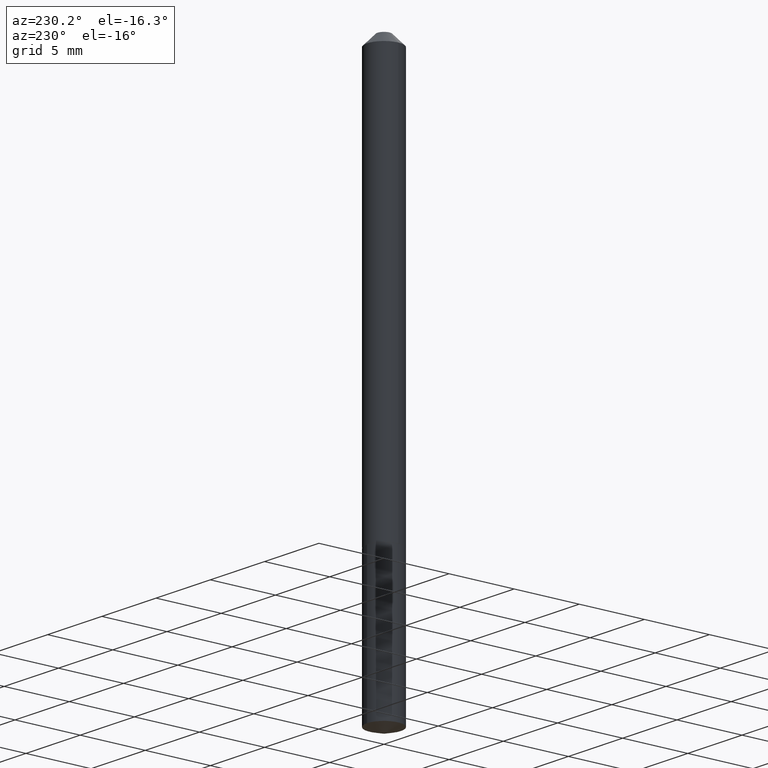
[diagram: clean part render]
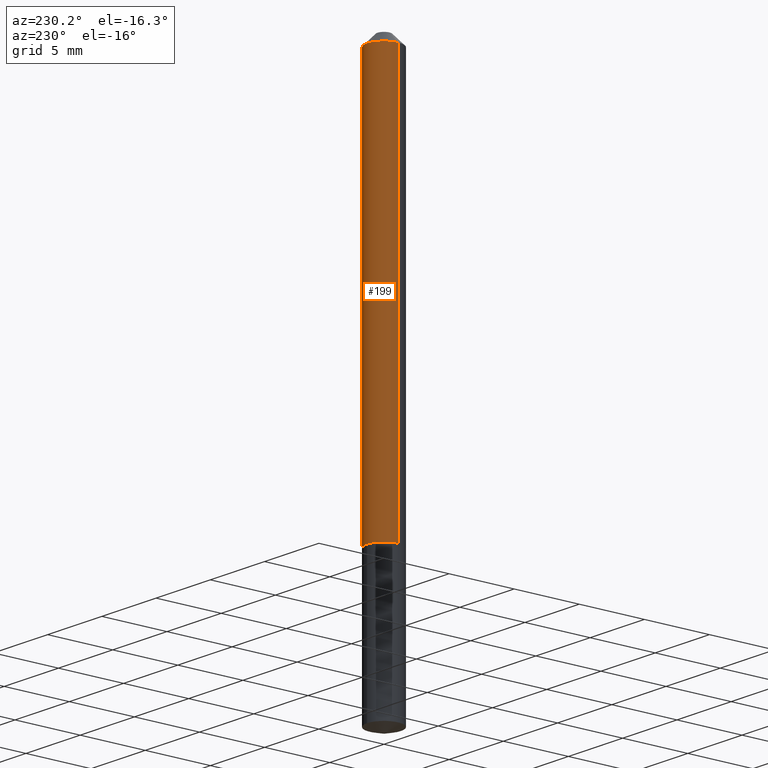
[diagram: same view with one face highlighted and labeled with its STEP entity id]
A machine part, auxiliary view. The second image highlights one B-rep face of the part: STEP entity #199.
In plain terms, the highlighted cylindrical surface (edge-blend (fillet) strip) has radius 1.3005 mm, axis along (-0, 0, 1).
Its self-contained STEP definition (entity closure, byte-faithful):
#14 = AXIS2_PLACEMENT_3D ( 'NONE', #375, #195, #16 ) ;
#16 = DIRECTION ( 'NONE',  ( 1.000000000000000000, -6.982962677686261977E-15, 0.000000000000000000 ) ) ;
#26 = FACE_OUTER_BOUND ( 'NONE', #43, .T. ) ;
#30 = EDGE_CURVE ( 'NONE', #340, #388, #218, .T. ) ;
#32 = VERTEX_POINT ( 'NONE', #275 ) ;
#43 = EDGE_LOOP ( 'NONE', ( #252, #182, #235, #96 ) ) ;
#46 = AXIS2_PLACEMENT_3D ( 'NONE', #265, #358, #114 ) ;
#56 = CARTESIAN_POINT ( 'NONE',  ( 0.05120000000000016205, -4.699533882082873778E-15, -1.243600000000000039 ) ) ;
#89 = DIRECTION ( 'NONE',  ( 1.000000000000000000, -6.982962677686266711E-15, 4.876176775795936353E-29 ) ) ;
#90 = DIRECTION ( 'NONE',  ( -2.445468806185136597E-29, 3.491481338843145583E-15, 1.000000000000000000 ) ) ;
#96 = ORIENTED_EDGE ( 'NONE', *, *, #256, .F. ) ;
#114 = DIRECTION ( 'NONE',  ( 1.000000000000000000, -6.982962677686267499E-15, 0.000000000000000000 ) ) ;
#116 = CIRCLE ( 'NONE', #46, 0.05120000000000001633 ) ;
#118 = CARTESIAN_POINT ( 'NONE',  ( 0.000000000000000000, 0.000000000000000000, 0.000000000000000000 ) ) ;
#120 = EDGE_CURVE ( 'NONE', #388, #161, #147, .T. ) ;
#135 = EDGE_CURVE ( 'NONE', #32, #161, #116, .T. ) ;
#147 = LINE ( 'NONE', #156, #188 ) ;
#151 = LINE ( 'NONE', #384, #231 ) ;
#156 = CARTESIAN_POINT ( 'NONE',  ( -0.05120000000000009266, 3.637978807091719535E-16, -2.518494766210516482E-30 ) ) ;
#161 = VERTEX_POINT ( 'NONE', #335 ) ;
#182 = ORIENTED_EDGE ( 'NONE', *, *, #120, .T. ) ;
#188 = VECTOR ( 'NONE', #294, 39.37007874015748143 ) ;
#195 = DIRECTION ( 'NONE',  ( -2.445468806185136597E-29, 3.491481338843145583E-15, 1.000000000000000000 ) ) ;
#199 = ADVANCED_FACE ( 'NONE', ( #26 ), #264, .T. ) ;
#218 = CIRCLE ( 'NONE', #14, 0.05120000000000016205 ) ;
#221 = AXIS2_PLACEMENT_3D ( 'NONE', #118, #90, #89 ) ;
#231 = VECTOR ( 'NONE', #352, 39.37007874015748143 ) ;
#235 = ORIENTED_EDGE ( 'NONE', *, *, #135, .F. ) ;
#252 = ORIENTED_EDGE ( 'NONE', *, *, #30, .T. ) ;
#256 = EDGE_CURVE ( 'NONE', #340, #32, #151, .T. ) ;
#263 = CARTESIAN_POINT ( 'NONE',  ( -0.05120000000000016205, -3.978208312276164187E-15, -1.243600000000000039 ) ) ;
#264 = CYLINDRICAL_SURFACE ( 'NONE', #221, 0.05120000000000009266 ) ;
#265 = CARTESIAN_POINT ( 'NONE',  ( 7.642090019328602662E-31, -1.091087918388490267E-16, -0.03125000000000020817 ) ) ;
#275 = CARTESIAN_POINT ( 'NONE',  ( 0.05120000000000001633, -4.666364809363860477E-16, -0.03125000000000020817 ) ) ;
#294 = DIRECTION ( 'NONE',  ( -2.445468806185136877E-29, 3.491481338843145188E-15, 1.000000000000000000 ) ) ;
#335 = CARTESIAN_POINT ( 'NONE',  ( -0.05120000000000001633, -1.861759611702918942E-15, -0.03125000000000020817 ) ) ;
#340 = VERTEX_POINT ( 'NONE', #56 ) ;
#352 = DIRECTION ( 'NONE',  ( -2.445468806185136877E-29, 3.491481338843145188E-15, 1.000000000000000000 ) ) ;
#358 = DIRECTION ( 'NONE',  ( -2.445468806185136597E-29, 3.491481338843145583E-15, 1.000000000000000000 ) ) ;
#375 = CARTESIAN_POINT ( 'NONE',  ( 3.041185007371835914E-29, -4.342006192985336437E-15, -1.243600000000000039 ) ) ;
#384 = CARTESIAN_POINT ( 'NONE',  ( 0.05120000000000009266, -3.575276890975374894E-16, 2.496602509207523938E-30 ) ) ;
#388 = VERTEX_POINT ( 'NONE', #263 ) ;